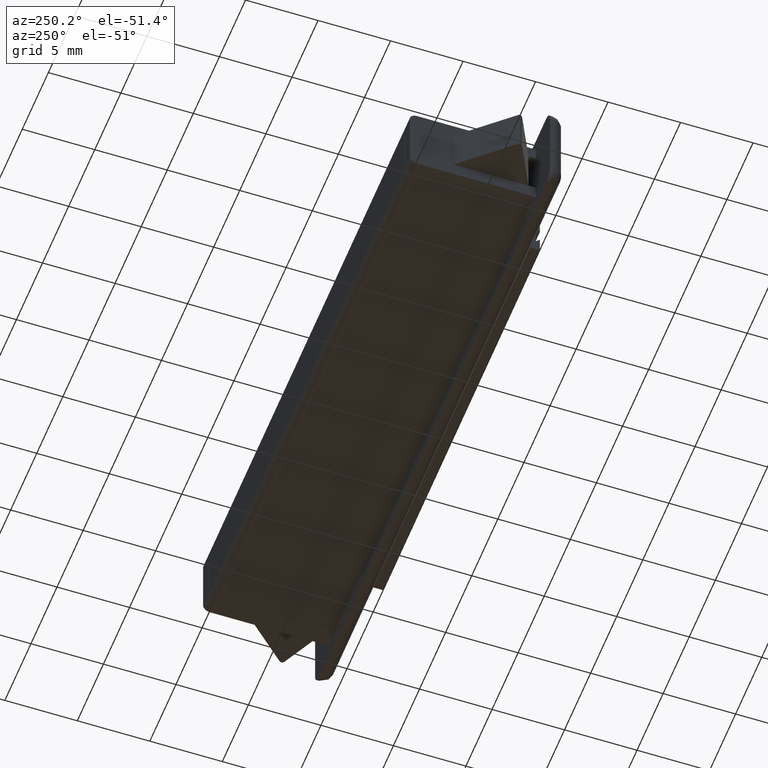
[diagram: clean part render]
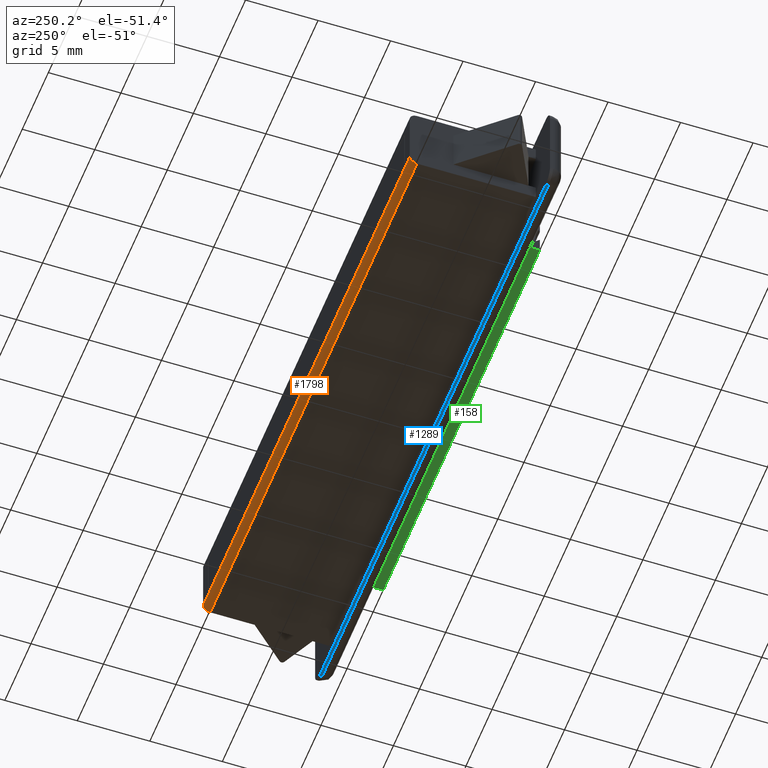
[diagram: same view with three faces highlighted in distinct colors, each labeled with its STEP entity id]
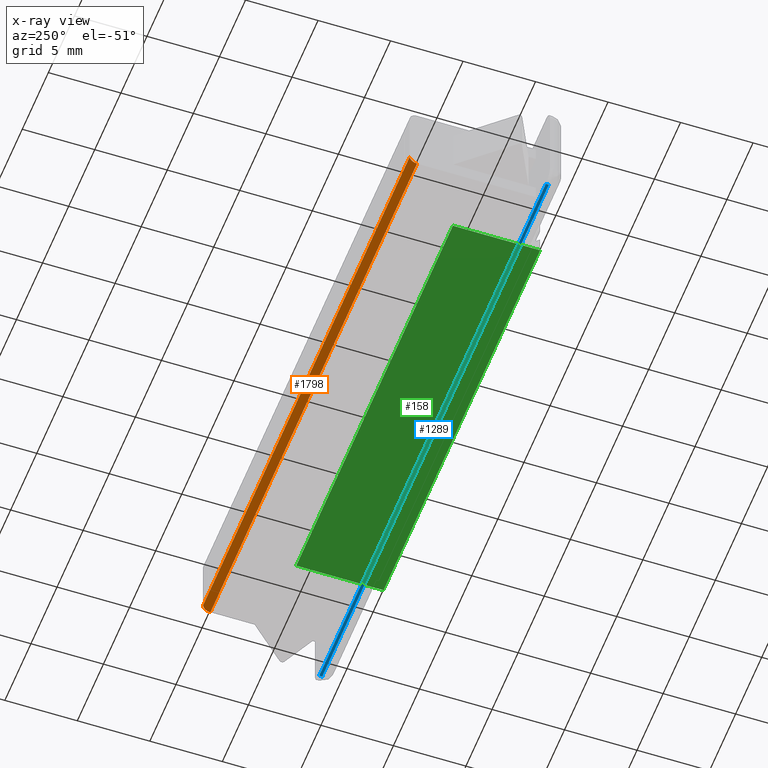
[diagram: x-ray of the same camera — body ghosted, the three highlighted faces saturated]
A machine part, auxiliary view with three faces highlighted in distinct colors.
The next image is the same camera in x-ray (body ghosted, the three faces saturated) — at least one of them is partly hidden behind the body in this view.
Their STEP definitions:

[orange] entity #1798 — the highlighted face is a freeform B-spline surface patch.
#1151=CARTESIAN_POINT('',(-19.800000000000001,-0.500000000000000,-2.475000000000000));
#1152=VERTEX_POINT('',#1151);
#1158=CARTESIAN_POINT('',(19.800000000000001,-0.500000000000000,-2.475000000000000));
#1159=VERTEX_POINT('',#1158);
#1160=CARTESIAN_POINT('',(-19.800000000000001,-0.500000000000000,-2.475000000000000));
#1161=CARTESIAN_POINT('',(19.800000000000001,-0.500000000000000,-2.475000000000000));
#1162=QUASI_UNIFORM_CURVE('',1,(#1160,#1161),.UNSPECIFIED.,.F.,.U.);
#1163=EDGE_CURVE('',#1152,#1159,#1162,.T.);
#1746=CARTESIAN_POINT('',(-20.789999999999999,-0.000019038467915,-1.970636732250814));
#1747=CARTESIAN_POINT('',(20.814750000000011,-0.000019038467915,-1.970636732250814));
#1748=CARTESIAN_POINT('',(-20.789999999999999,0.004659993339773,-2.506800671005876));
#1749=CARTESIAN_POINT('',(20.814750000000004,0.004659993339773,-2.506800671005876));
#1750=CARTESIAN_POINT('',(-20.789999999999999,-0.530524269767429,-2.474067399210933));
#1751=CARTESIAN_POINT('',(20.814750000000011,-0.530524269767429,-2.474067399210933));
#1759=(BOUNDED_SURFACE()B_SPLINE_SURFACE(1,2,((#1746,#1748,#1750),(#1747,#1749,#1751)),.UNSPECIFIED.,.F.,.F.,.U.)B_SPLINE_SURFACE_WITH_KNOTS((2,2),(3,3),(0.0,41.604750000000010),(0.0,1.0),.UNSPECIFIED.)GEOMETRIC_REPRESENTATION_ITEM()RATIONAL_B_SPLINE_SURFACE(((1.0,0.681998360062499,1.0),(1.0,0.681998360062499,1.0)))REPRESENTATION_ITEM('')SURFACE());
#1760=CARTESIAN_POINT('',(-19.800000000000001,0.0,-1.975000000000000));
#1761=VERTEX_POINT('',#1760);
#1762=CARTESIAN_POINT('',(-19.800000000000001,0.0,-1.975000000000000));
#1763=CARTESIAN_POINT('',(-19.799999999999997,0.0,-2.475000000000000));
#1764=CARTESIAN_POINT('',(-19.800000000000001,-0.500000000000000,-2.475000000000000));
#1772=(BOUNDED_CURVE()B_SPLINE_CURVE(2,(#1762,#1763,#1764),.UNSPECIFIED.,.F.,.U.)CURVE()GEOMETRIC_REPRESENTATION_ITEM()QUASI_UNIFORM_CURVE()RATIONAL_B_SPLINE_CURVE((1.0,0.707106781186548,1.0))REPRESENTATION_ITEM(''));
#1773=EDGE_CURVE('',#1761,#1152,#1772,.T.);
#1774=ORIENTED_EDGE('',*,*,#1773,.F.);
#1775=CARTESIAN_POINT('',(19.800000000000001,0.0,-1.975000000000000));
#1776=VERTEX_POINT('',#1775);
#1777=CARTESIAN_POINT('',(19.800000000000001,0.0,-1.975000000000000));
#1778=CARTESIAN_POINT('',(-19.800000000000001,0.0,-1.975000000000000));
#1779=QUASI_UNIFORM_CURVE('',1,(#1777,#1778),.UNSPECIFIED.,.F.,.U.);
#1780=EDGE_CURVE('',#1776,#1761,#1779,.T.);
#1781=ORIENTED_EDGE('',*,*,#1780,.F.);
#1782=CARTESIAN_POINT('',(19.800000000000001,-0.500000000000000,-2.475000000000000));
#1783=CARTESIAN_POINT('',(19.799999999999997,0.0,-2.475000000000000));
#1784=CARTESIAN_POINT('',(19.800000000000001,0.0,-1.975000000000000));
#1792=(BOUNDED_CURVE()B_SPLINE_CURVE(2,(#1782,#1783,#1784),.UNSPECIFIED.,.F.,.U.)CURVE()GEOMETRIC_REPRESENTATION_ITEM()QUASI_UNIFORM_CURVE()RATIONAL_B_SPLINE_CURVE((1.0,0.707106781186548,1.0))REPRESENTATION_ITEM(''));
#1793=EDGE_CURVE('',#1159,#1776,#1792,.T.);
#1794=ORIENTED_EDGE('',*,*,#1793,.F.);
#1795=ORIENTED_EDGE('',*,*,#1163,.F.);
#1796=EDGE_LOOP('',(#1774,#1781,#1794,#1795));
#1797=FACE_OUTER_BOUND('',#1796,.T.);
#1798=ADVANCED_FACE('',(#1797),#1759,.T.);

[blue] entity #1289 — the highlighted face is a freeform B-spline surface patch.
#574=CARTESIAN_POINT('',(-21.699999999999999,-8.699999999999999,-3.350000000000110));
#575=VERTEX_POINT('',#574);
#591=CARTESIAN_POINT('',(-21.699999999999999,-8.900000000088689,-3.350000000000110));
#592=VERTEX_POINT('',#591);
#593=CARTESIAN_POINT('',(-21.699999999999999,-8.900000000088689,-3.350000000000110));
#594=CARTESIAN_POINT('',(-21.699999999999999,-8.699999999999999,-3.350000000000110));
#595=QUASI_UNIFORM_CURVE('',1,(#593,#594),.UNSPECIFIED.,.F.,.U.);
#596=EDGE_CURVE('',#592,#575,#595,.T.);
#691=CARTESIAN_POINT('',(21.699999999999999,-8.900000000088689,-3.350000000000110));
#692=VERTEX_POINT('',#691);
#714=CARTESIAN_POINT('',(21.699999999999999,-8.900000000088689,-3.350000000000110));
#715=CARTESIAN_POINT('',(-21.699999999999999,-8.900000000088689,-3.350000000000110));
#716=QUASI_UNIFORM_CURVE('',1,(#714,#715),.UNSPECIFIED.,.F.,.U.);
#717=EDGE_CURVE('',#692,#592,#716,.T.);
#895=CARTESIAN_POINT('',(21.699999999999999,-8.699999999999999,-3.350000000000110));
#896=VERTEX_POINT('',#895);
#916=CARTESIAN_POINT('',(21.699999999999999,-8.699999999999999,-3.350000000000110));
#917=CARTESIAN_POINT('',(21.699999999999999,-8.900000000088689,-3.350000000000110));
#918=QUASI_UNIFORM_CURVE('',1,(#916,#917),.UNSPECIFIED.,.F.,.U.);
#919=EDGE_CURVE('',#896,#692,#918,.T.);
#1274=CARTESIAN_POINT('',(23.867829915882378,-8.909989999705479,-3.350000000000110));
#1275=CARTESIAN_POINT('',(-23.867831079961089,-8.909989999705479,-3.350000000000110));
#1276=CARTESIAN_POINT('',(23.867829915882378,-8.690009995018791,-3.350000000000110));
#1277=CARTESIAN_POINT('',(-23.867831079961089,-8.690009995018791,-3.350000000000110));
#1278=B_SPLINE_SURFACE_WITH_KNOTS('',1,1,((#1274,#1276),(#1275,#1277)),.UNSPECIFIED.,.F.,.F.,.U.,(2,2),(2,2),(0.0,47.735660995843482),(0.0,0.219980004686688),.UNSPECIFIED.);
#1279=ORIENTED_EDGE('',*,*,#717,.T.);
#1280=ORIENTED_EDGE('',*,*,#596,.T.);
#1281=CARTESIAN_POINT('',(-21.699999999999999,-8.699999999999999,-3.350000000000110));
#1282=CARTESIAN_POINT('',(21.699999999999999,-8.699999999999999,-3.350000000000110));
#1283=QUASI_UNIFORM_CURVE('',1,(#1281,#1282),.UNSPECIFIED.,.F.,.U.);
#1284=EDGE_CURVE('',#575,#896,#1283,.T.);
#1285=ORIENTED_EDGE('',*,*,#1284,.T.);
#1286=ORIENTED_EDGE('',*,*,#919,.T.);
#1287=EDGE_LOOP('',(#1279,#1280,#1285,#1286));
#1288=FACE_OUTER_BOUND('',#1287,.T.);
#1289=ADVANCED_FACE('',(#1288),#1278,.T.);

[green] entity #158 — the highlighted face is a freeform B-spline surface patch.
#12=CARTESIAN_POINT('',(-15.0,-10.699999999999701,-1.499999999999998));
#13=VERTEX_POINT('',#12);
#33=CARTESIAN_POINT('',(-15.0,-4.699999999999700,-1.499999999999998));
#34=VERTEX_POINT('',#33);
#40=CARTESIAN_POINT('',(-15.0,-10.699999999999701,-1.499999999999998));
#41=CARTESIAN_POINT('',(-15.0,-4.699999999999700,-1.499999999999998));
#42=QUASI_UNIFORM_CURVE('',1,(#40,#41),.UNSPECIFIED.,.F.,.U.);
#43=EDGE_CURVE('',#13,#34,#42,.T.);
#55=CARTESIAN_POINT('',(15.0,-10.699999999999701,-1.500000000000002));
#56=VERTEX_POINT('',#55);
#62=CARTESIAN_POINT('',(15.0,-4.699999999999700,-1.500000000000002));
#63=VERTEX_POINT('',#62);
#64=CARTESIAN_POINT('',(15.0,-10.699999999999701,-1.500000000000002));
#65=CARTESIAN_POINT('',(15.0,-4.699999999999700,-1.500000000000002));
#66=QUASI_UNIFORM_CURVE('',1,(#64,#65),.UNSPECIFIED.,.F.,.U.);
#67=EDGE_CURVE('',#56,#63,#66,.T.);
#135=CARTESIAN_POINT('',(15.0,-4.699999999999700,-1.500000000000002));
#136=CARTESIAN_POINT('',(-15.0,-4.699999999999700,-1.499999999999998));
#137=QUASI_UNIFORM_CURVE('',1,(#135,#136),.UNSPECIFIED.,.F.,.U.);
#138=EDGE_CURVE('',#63,#34,#137,.T.);
#143=CARTESIAN_POINT('',(-16.498499941854181,-10.999699988370541,-1.499999999999998));
#144=CARTESIAN_POINT('',(16.498500746516889,-10.999699988370541,-1.500000000000002));
#145=CARTESIAN_POINT('',(-16.498499941854181,-4.400299850696323,-1.499999999999998));
#146=CARTESIAN_POINT('',(16.498500746516889,-4.400299850696323,-1.500000000000002));
#147=B_SPLINE_SURFACE_WITH_KNOTS('',1,1,((#143,#145),(#144,#146)),.UNSPECIFIED.,.F.,.F.,.U.,(2,2),(2,2),(0.0,32.997000688371060),(0.0,6.599400137674216),.UNSPECIFIED.);
#148=ORIENTED_EDGE('',*,*,#43,.T.);
#149=ORIENTED_EDGE('',*,*,#138,.F.);
#150=ORIENTED_EDGE('',*,*,#67,.F.);
#151=CARTESIAN_POINT('',(15.0,-10.699999999999701,-1.500000000000002));
#152=CARTESIAN_POINT('',(-15.0,-10.699999999999701,-1.499999999999998));
#153=QUASI_UNIFORM_CURVE('',1,(#151,#152),.UNSPECIFIED.,.F.,.U.);
#154=EDGE_CURVE('',#56,#13,#153,.T.);
#155=ORIENTED_EDGE('',*,*,#154,.T.);
#156=EDGE_LOOP('',(#148,#149,#150,#155));
#157=FACE_OUTER_BOUND('',#156,.T.);
#158=ADVANCED_FACE('',(#157),#147,.F.);